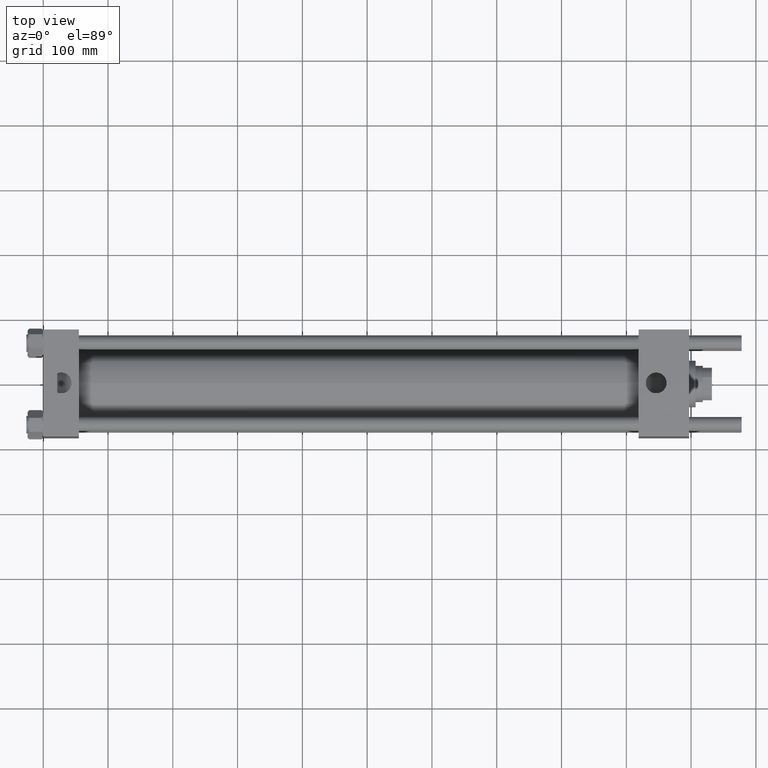
[diagram: clean part render]
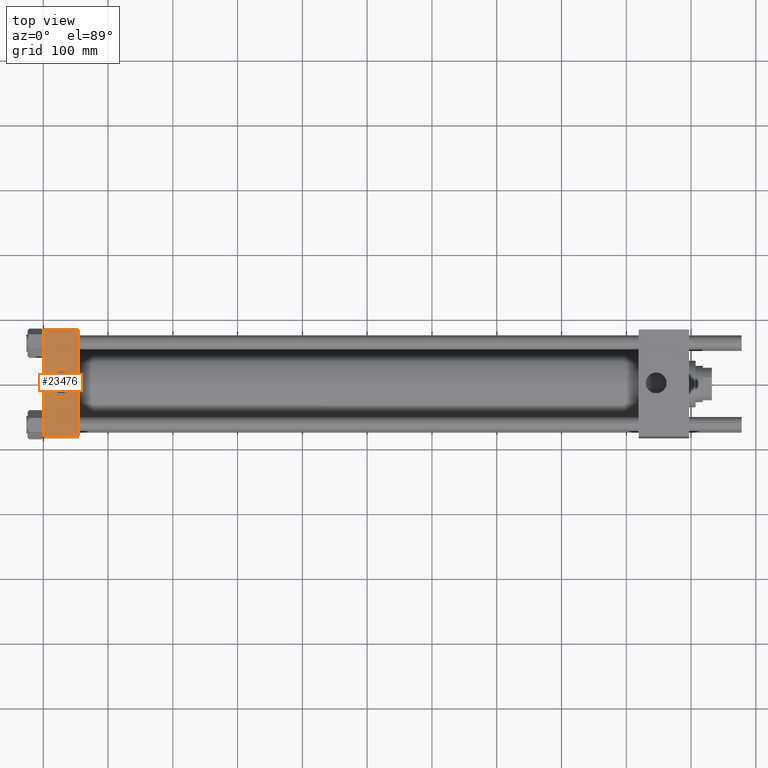
[diagram: same view with one face highlighted and labeled with its STEP entity id]
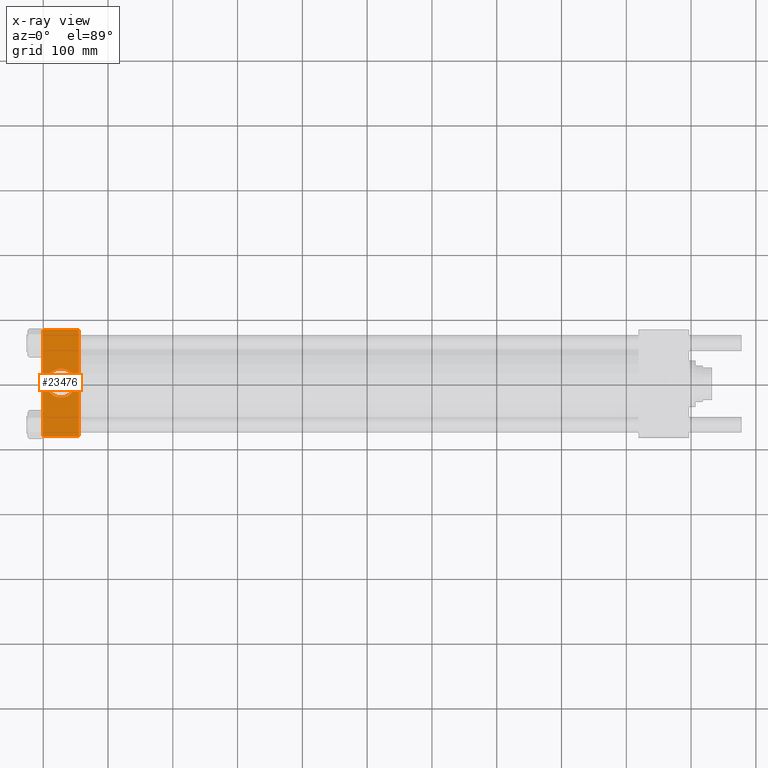
[diagram: x-ray of the same camera — body ghosted, the highlighted face saturated]
A machine part, top view. The second image highlights one B-rep face of the part: STEP entity #23476.
The next image is the same camera in x-ray: the body ghosted, the highlighted face saturated — about 0% of this face is hidden behind the body in this view.
In plain terms, the highlighted planar face has unit normal (0, 0, -1).
Its self-contained STEP definition (entity closure, byte-faithful):
#534 = EDGE_CURVE ( 'NONE', #39482, #4599, #35560, .T. ) ;
#3451 = ORIENTED_EDGE ( 'NONE', *, *, #26086, .T. ) ;
#3746 = CARTESIAN_POINT ( 'NONE',  ( 27.50000000000000000, -8.673617379884037050E-15, 82.50000000000001421 ) ) ;
#3810 = DIRECTION ( 'NONE',  ( -1.000000000000000000, 0.000000000000000000, 0.000000000000000000 ) ) ;
#3894 = LINE ( 'NONE', #21260, #9826 ) ;
#4470 = VECTOR ( 'NONE', #8869, 1000.000000000000000 ) ;
#4540 = CARTESIAN_POINT ( 'NONE',  ( 55.00000000000000000, 82.50000000000002842, 82.50000000000002842 ) ) ;
#4599 = VERTEX_POINT ( 'NONE', #4854 ) ;
#4854 = CARTESIAN_POINT ( 'NONE',  ( 50.00000000000000000, -8.673617379884037050E-15, 82.50000000000001421 ) ) ;
#5525 = CARTESIAN_POINT ( 'NONE',  ( 55.00000000000000000, -81.99999999999997158, 82.50000000000001421 ) ) ;
#8869 = DIRECTION ( 'NONE',  ( 0.000000000000000000, -1.000000000000000000, -8.410780489584519171E-17 ) ) ;
#9400 = ORIENTED_EDGE ( 'NONE', *, *, #48530, .T. ) ;
#9826 = VECTOR ( 'NONE', #21544, 1000.000000000000000 ) ;
#10099 = DIRECTION ( 'NONE',  ( 1.000000000000000000, 0.000000000000000000, 0.000000000000000000 ) ) ;
#14943 = CARTESIAN_POINT ( 'NONE',  ( 55.00000000000000000, 82.50000000000002842, 82.50000000000002842 ) ) ;
#16260 = CARTESIAN_POINT ( 'NONE',  ( 0.000000000000000000, 82.00000000000005684, 82.50000000000002842 ) ) ;
#17530 = EDGE_CURVE ( 'NONE', #50272, #28558, #36076, .T. ) ;
#18675 = CARTESIAN_POINT ( 'NONE',  ( 0.000000000000000000, -81.99999999999997158, 82.50000000000001421 ) ) ;
#19846 = FACE_OUTER_BOUND ( 'NONE', #50599, .T. ) ;
#20319 = AXIS2_PLACEMENT_3D ( 'NONE', #14943, #41856, #36376 ) ;
#21260 = CARTESIAN_POINT ( 'NONE',  ( 0.000000000000000000, 82.50000000000002842, 82.50000000000002842 ) ) ;
#21544 = DIRECTION ( 'NONE',  ( 0.000000000000000000, -1.000000000000000000, -8.410780489584519171E-17 ) ) ;
#22662 = ORIENTED_EDGE ( 'NONE', *, *, #55652, .F. ) ;
#23476 = ADVANCED_FACE ( 'NONE', ( #54309, #19846 ), #45341, .F. ) ;
#25752 = DIRECTION ( 'NONE',  ( 1.000000000000000000, 0.000000000000000000, 0.000000000000000000 ) ) ;
#25815 = LINE ( 'NONE', #16260, #49553 ) ;
#26086 = EDGE_CURVE ( 'NONE', #53839, #28558, #52379, .T. ) ;
#26423 = CARTESIAN_POINT ( 'NONE',  ( 27.50000000000000000, -8.673617379884037050E-15, 82.50000000000001421 ) ) ;
#28558 = VERTEX_POINT ( 'NONE', #5525 ) ;
#31077 = ORIENTED_EDGE ( 'NONE', *, *, #17530, .F. ) ;
#31086 = ORIENTED_EDGE ( 'NONE', *, *, #47607, .T. ) ;
#32008 = CARTESIAN_POINT ( 'NONE',  ( 55.00000000000000000, 82.00000000000005684, 82.50000000000002842 ) ) ;
#32253 = AXIS2_PLACEMENT_3D ( 'NONE', #26423, #34845, #10099 ) ;
#33688 = AXIS2_PLACEMENT_3D ( 'NONE', #3746, #34166, #47174 ) ;
#34166 = DIRECTION ( 'NONE',  ( 0.000000000000000000, 0.000000000000000000, 1.000000000000000000 ) ) ;
#34845 = DIRECTION ( 'NONE',  ( 0.000000000000000000, 0.000000000000000000, 1.000000000000000000 ) ) ;
#35560 = CIRCLE ( 'NONE', #33688, 22.50000000000000355 ) ;
#35967 = CIRCLE ( 'NONE', #32253, 22.50000000000000355 ) ;
#36076 = LINE ( 'NONE', #4540, #4470 ) ;
#36376 = DIRECTION ( 'NONE',  ( 0.000000000000000000, 1.000000000000000000, 8.410780489584519171E-17 ) ) ;
#36675 = ORIENTED_EDGE ( 'NONE', *, *, #534, .F. ) ;
#38179 = VERTEX_POINT ( 'NONE', #47463 ) ;
#38624 = EDGE_LOOP ( 'NONE', ( #22662, #36675 ) ) ;
#39482 = VERTEX_POINT ( 'NONE', #43639 ) ;
#41856 = DIRECTION ( 'NONE',  ( 0.000000000000000000, 8.410780489584519171E-17, -1.000000000000000000 ) ) ;
#43639 = CARTESIAN_POINT ( 'NONE',  ( 4.999999999999993783, -5.918162081802491483E-15, 82.50000000000001421 ) ) ;
#45341 = PLANE ( 'NONE',  #20319 ) ;
#47174 = DIRECTION ( 'NONE',  ( 1.000000000000000000, 0.000000000000000000, 0.000000000000000000 ) ) ;
#47463 = CARTESIAN_POINT ( 'NONE',  ( 0.000000000000000000, 82.00000000000005684, 82.50000000000002842 ) ) ;
#47607 = EDGE_CURVE ( 'NONE', #50272, #38179, #25815, .T. ) ;
#47748 = CARTESIAN_POINT ( 'NONE',  ( 55.00000000000000000, -81.99999999999997158, 82.50000000000001421 ) ) ;
#48530 = EDGE_CURVE ( 'NONE', #38179, #53839, #3894, .T. ) ;
#49553 = VECTOR ( 'NONE', #3810, 1000.000000000000000 ) ;
#50272 = VERTEX_POINT ( 'NONE', #32008 ) ;
#50599 = EDGE_LOOP ( 'NONE', ( #9400, #3451, #31077, #31086 ) ) ;
#52379 = LINE ( 'NONE', #47748, #52781 ) ;
#52781 = VECTOR ( 'NONE', #25752, 1000.000000000000000 ) ;
#53839 = VERTEX_POINT ( 'NONE', #18675 ) ;
#54309 = FACE_BOUND ( 'NONE', #38624, .T. ) ;
#55652 = EDGE_CURVE ( 'NONE', #4599, #39482, #35967, .T. ) ;